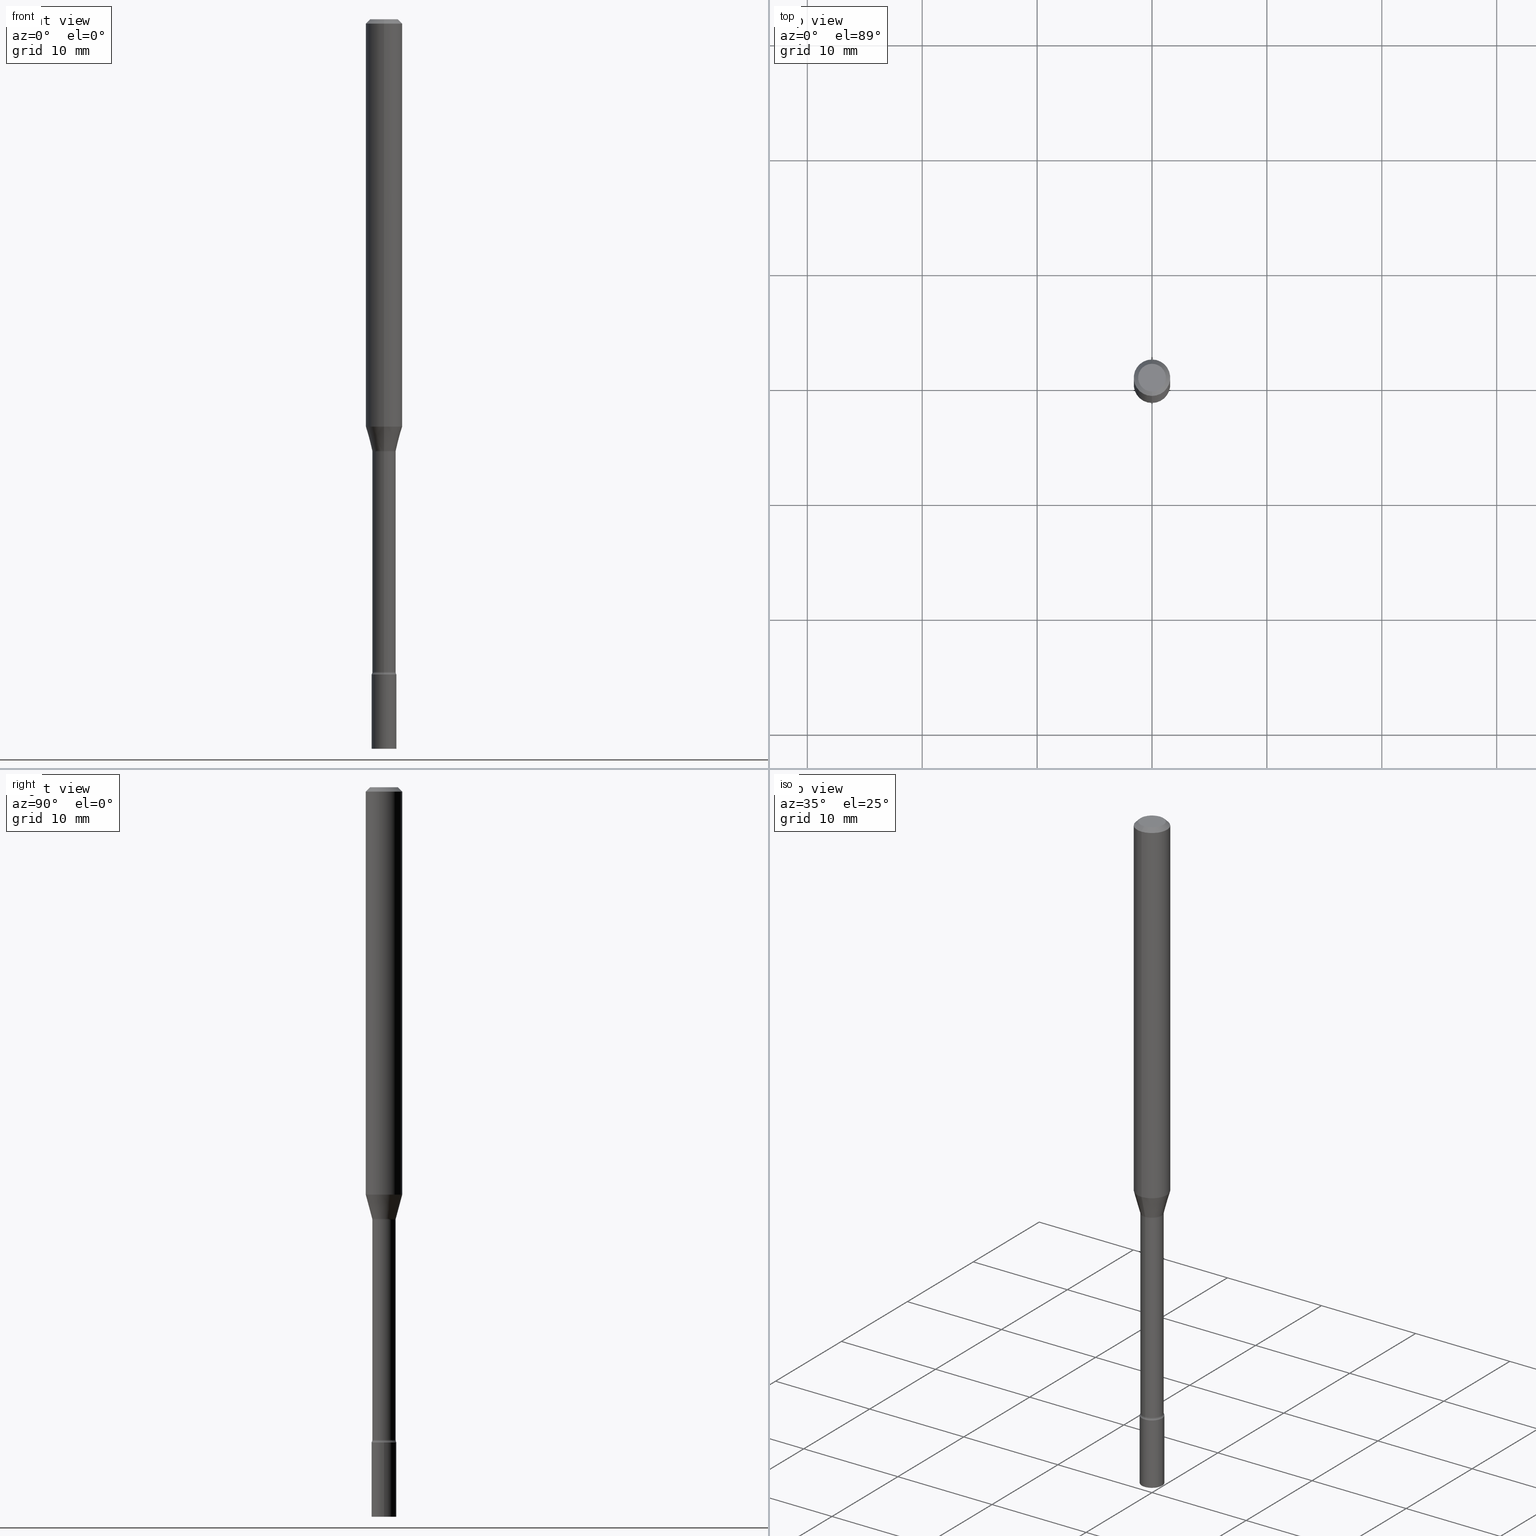
[diagram: canonical four-view strip — front | top / right | iso, engineering-drawing reading convention]
A machine part, canonical four-view strip (front | top / right | iso — engineering-drawing reading convention). The complete STEP part file that produces these views, byte-faithful:
ISO-10303-21;
HEADER;
FILE_DESCRIPTION (( 'STEP AP203' ),
    '1' );
FILE_NAME ('04313.STEP',
    '2024-03-08T23:05:05',
    ( '' ),
    ( '' ),
    'SwSTEP 2.0',
    'SolidWorks 2023',
    '' );
FILE_SCHEMA (( 'CONFIG_CONTROL_DESIGN' ));
ENDSEC;

DATA;
#1 = AXIS2_PLACEMENT_3D ( 'NONE', #19, #295, #327 ) ;
#2 = ADVANCED_FACE ( 'NONE', ( #154 ), #232, .T. ) ;
#3 = ORIENTED_EDGE ( 'NONE', *, *, #272, .F. ) ;
#4 = ADVANCED_FACE ( 'NONE', ( #440 ), #333, .F. ) ;
#5 = DIRECTION ( 'NONE',  ( -6.982962677686265133E-15, -1.000000000000000000, 6.838167693777879394E-15 ) ) ;
#6 = DATE_AND_TIME ( #118, #384 ) ;
#7 = LINE ( 'NONE', #226, #85 ) ;
#8 = TOROIDAL_SURFACE ( 'NONE', #47, 0.05494999999999999885, 0.01500000000000001506 ) ;
#9 = CC_DESIGN_APPROVAL ( #350, ( #300 ) ) ;
#10 = CARTESIAN_POINT ( 'NONE',  ( 2.838618229361602665E-16, 0.03995000000000004103, -1.394862244673067484E-16 ) ) ;
#11 = CARTESIAN_POINT ( 'NONE',  ( -2.789693589735121927E-16, -0.03995000000000789586, -2.236633549139569688 ) ) ;
#12 = EDGE_CURVE ( 'NONE', #479, #267, #355, .T. ) ;
#13 = CARTESIAN_POINT ( 'NONE',  ( -0.04249999999999999611, -7.981558813707320936E-15, -2.245000000000000107 ) ) ;
#14 = MANIFOLD_SOLID_BREP ( 'Body-Move/Copy2[2]', #275 ) ;
#15 = AXIS2_PLACEMENT_3D ( 'NONE', #364, #433, #5 ) ;
#16 = ORIENTED_EDGE ( 'NONE', *, *, #82, .T. ) ;
#17 = AXIS2_PLACEMENT_3D ( 'NONE', #352, #114, #266 ) ;
#18 = EDGE_LOOP ( 'NONE', ( #468, #39, #336, #349 ) ) ;
#19 = CARTESIAN_POINT ( 'NONE',  ( 5.490077469885631570E-29, -7.838375605702861835E-15, -2.245000000000000107 ) ) ;
#20 = EDGE_LOOP ( 'NONE', ( #115, #179 ) ) ;
#21 = APPROVAL ( #71, 'UNSPECIFIED' ) ;
#22 = EDGE_LOOP ( 'NONE', ( #500, #385, #173, #140 ) ) ;
#23 = ORIENTED_EDGE ( 'NONE', *, *, #167, .T. ) ;
#24 = ORIENTED_EDGE ( 'NONE', *, *, #224, .F. ) ;
#25 = PERSON_AND_ORGANIZATION_ROLE ( 'creator' ) ;
#26 = ORIENTED_EDGE ( 'NONE', *, *, #286, .T. ) ;
#27 = ORIENTED_EDGE ( 'NONE', *, *, #212, .T. ) ;
#28 = CARTESIAN_POINT ( 'NONE',  ( -4.287811248607203282E-16, -0.06250000000000005551, -0.01499999999999981209 ) ) ;
#29 = ADVANCED_FACE ( 'NONE', ( #70 ), #263, .T. ) ;
#30 = FACE_OUTER_BOUND ( 'NONE', #260, .T. ) ;
#31 = AXIS2_PLACEMENT_3D ( 'NONE', #168, #174, #95 ) ;
#32 = PERSON_AND_ORGANIZATION ( #323, #175 ) ;
#33 = CARTESIAN_POINT ( 'NONE',  ( 5.469617575287968605E-29, -7.809164298651321670E-15, -2.236633549139569688 ) ) ;
#34 = LINE ( 'NONE', #151, #152 ) ;
#35 = DIRECTION ( 'NONE',  ( 2.438088387897960049E-29, -3.491481338843145188E-15, -1.000000000000000000 ) ) ;
#36 = ORIENTED_EDGE ( 'NONE', *, *, #407, .F. ) ;
#37 = CC_DESIGN_PERSON_AND_ORGANIZATION_ASSIGNMENT ( #314, #368, ( #133 ) ) ;
#38 = SECURITY_CLASSIFICATION_LEVEL ( 'unclassified' ) ;
#39 = ORIENTED_EDGE ( 'NONE', *, *, #286, .F. ) ;
#40 = CARTESIAN_POINT ( 'NONE',  ( 3.668162701613145643E-31, -5.237280017545941852E-17, -0.01500000000000003067 ) ) ;
#41 = PRODUCT_RELATED_PRODUCT_CATEGORY ( 'detail', '', ( #281 ) ) ;
#42 = CIRCLE ( 'NONE', #101, 0.01500000000000000291 ) ;
#43 = FACE_OUTER_BOUND ( 'NONE', #18, .T. ) ;
#44 = ADVANCED_FACE ( 'NONE', ( #30 ), #189, .T. ) ;
#45 = CALENDAR_DATE ( 2024, 8, 3 ) ;
#46 = CARTESIAN_POINT ( 'NONE',  ( -0.04249999999999999611, -7.981558813707320936E-15, -2.500000000000000000 ) ) ;
#47 = AXIS2_PLACEMENT_3D ( 'NONE', #122, #243, #371 ) ;
#48 = DIRECTION ( 'NONE',  ( -6.982962677686265922E-15, -1.000000000000000000, 3.491520011697287074E-15 ) ) ;
#49 = EDGE_CURVE ( 'NONE', #461, #267, #422, .T. ) ;
#50 = CARTESIAN_POINT ( 'NONE',  ( 3.668162701613145643E-31, -5.237280017545941852E-17, -0.01500000000000003067 ) ) ;
#51 = AXIS2_PLACEMENT_3D ( 'NONE', #208, #55, #169 ) ;
#52 = VERTEX_POINT ( 'NONE', #235 ) ;
#53 = DIRECTION ( 'NONE',  ( -2.445441801075425804E-29, 3.491520011697286679E-15, 1.000000000000000000 ) ) ;
#54 = APPROVAL_PERSON_ORGANIZATION ( #265, #21, #223 ) ;
#55 = DIRECTION ( 'NONE',  ( -2.445468806185136597E-29, 3.491481338843145583E-15, 1.000000000000000000 ) ) ;
#56 = EDGE_CURVE ( 'NONE', #329, #62, #403, .T. ) ;
#57 = EDGE_LOOP ( 'NONE', ( #72, #36, #392, #373 ) ) ;
#58 = PLANE ( 'NONE',  #254 ) ;
#59 = ORIENTED_EDGE ( 'NONE', *, *, #431, .T. ) ;
#60 = VERTEX_POINT ( 'NONE', #46 ) ;
#61 = CIRCLE ( 'NONE', #83, 0.04249999999999999611 ) ;
#62 = VERTEX_POINT ( 'NONE', #202 ) ;
#63 =( NAMED_UNIT ( * ) PLANE_ANGLE_UNIT ( ) SI_UNIT ( $, .RADIAN. ) );
#64 = VERTEX_POINT ( 'NONE', #11 ) ;
#65 = DIRECTION ( 'NONE',  ( -2.445441801075425524E-29, 3.491520011697287074E-15, 1.000000000000000000 ) ) ;
#66 = DIRECTION ( 'NONE',  ( -6.982962677686265922E-15, -1.000000000000000000, 3.491520011697286679E-15 ) ) ;
#67 = EDGE_LOOP ( 'NONE', ( #420, #231, #3, #181 ) ) ;
#68 = DIRECTION ( 'NONE',  ( -4.851104656540964275E-15, -0.7071067811865500152, -0.7071067811865450192 ) ) ;
#69 = EDGE_CURVE ( 'NONE', #477, #62, #171, .T. ) ;
#70 = FACE_OUTER_BOUND ( 'NONE', #271, .T. ) ;
#71 = APPROVAL_STATUS ( 'not_yet_approved' ) ;
#72 = ORIENTED_EDGE ( 'NONE', *, *, #341, .F. ) ;
#73 = CIRCLE ( 'NONE', #236, 0.01500000000000001159 ) ;
#74 = PERSON_AND_ORGANIZATION ( #323, #175 ) ;
#75 = LOCAL_TIME ( 18, 5, 5.000000000000000000, #237 ) ;
#76 = VERTEX_POINT ( 'NONE', #256 ) ;
#77 = CC_DESIGN_PERSON_AND_ORGANIZATION_ASSIGNMENT ( #441, #116, ( #300 ) ) ;
#78 = DIRECTION ( 'NONE',  ( -2.445468806185136597E-29, 3.491481338843145583E-15, 1.000000000000000000 ) ) ;
#79 = LINE ( 'NONE', #406, #128 ) ;
#80 = TOROIDAL_SURFACE ( 'NONE', #93, 0.05495000000000008905, 0.01500000000000000291 ) ;
#81 = DIRECTION ( 'NONE',  ( -1.000000000000000000, 6.982962677686265922E-15, -4.883557194083112340E-29 ) ) ;
#82 = EDGE_CURVE ( 'NONE', #376, #76, #310, .T. ) ;
#83 = AXIS2_PLACEMENT_3D ( 'NONE', #488, #123, #520 ) ;
#84 = CARTESIAN_POINT ( 'NONE',  ( 3.904432333002112329E-16, 0.05494999999999482937, -1.481974787463811394 ) ) ;
#85 = VECTOR ( 'NONE', #518, 39.37007874015748143 ) ;
#86 = ADVANCED_FACE ( 'NONE', ( #391 ), #194, .T. ) ;
#87 = DIRECTION ( 'NONE',  ( -6.982962677686265922E-15, -1.000000000000000000, 6.751786635945948968E-15 ) ) ;
#88 = CARTESIAN_POINT ( 'NONE',  ( 3.614589189726750979E-29, -5.160789549129972478E-15, -1.478092501787273250 ) ) ;
#89 = ORIENTED_EDGE ( 'NONE', *, *, #321, .F. ) ;
#90 = DIRECTION ( 'NONE',  ( 1.000000000000000000, -6.982962677686267499E-15, 4.876176775795935793E-29 ) ) ;
#91 = EDGE_CURVE ( 'NONE', #251, #401, #492, .T. ) ;
#92 = AXIS2_PLACEMENT_3D ( 'NONE', #513, #110, #397 ) ;
#93 = AXIS2_PLACEMENT_3D ( 'NONE', #449, #163, #408 ) ;
#94 = ORIENTED_EDGE ( 'NONE', *, *, #398, .T. ) ;
#95 = DIRECTION ( 'NONE',  ( -6.982962677686265133E-15, -1.000000000000000000, 6.838167693777879394E-15 ) ) ;
#96 = CARTESIAN_POINT ( 'NONE',  ( 3.904432333002303135E-16, 0.05494999999999227586, -2.236633549139570132 ) ) ;
#97 = EDGE_LOOP ( 'NONE', ( #107, #247 ) ) ;
#98 = DIRECTION ( 'NONE',  ( 0.000000000000000000, 0.000000000000000000, 1.000000000000000000 ) ) ;
#99 = ORIENTED_EDGE ( 'NONE', *, *, #487, .T. ) ;
#100 = VECTOR ( 'NONE', #409, 39.37007874015748143 ) ;
#101 = AXIS2_PLACEMENT_3D ( 'NONE', #96, #386, #457 ) ;
#102 = EDGE_CURVE ( 'NONE', #64, #255, #185, .T. ) ;
#103 = FACE_OUTER_BOUND ( 'NONE', #20, .T. ) ;
#104 = CARTESIAN_POINT ( 'NONE',  ( 5.490077469885631570E-29, -7.838375605702861835E-15, -2.245000000000000107 ) ) ;
#105 = DIRECTION ( 'NONE',  ( -2.445441801075425524E-29, 3.491520011697287074E-15, 1.000000000000000000 ) ) ;
#106 = DIRECTION ( 'NONE',  ( 1.000000000000000000, -6.982962677686276177E-15, 0.000000000000000000 ) ) ;
#107 = ORIENTED_EDGE ( 'NONE', *, *, #119, .F. ) ;
#108 = DIRECTION ( 'NONE',  ( -2.445441801075425524E-29, 3.491520011697287074E-15, 1.000000000000000000 ) ) ;
#109 = EDGE_CURVE ( 'NONE', #64, #519, #418, .T. ) ;
#110 = DIRECTION ( 'NONE',  ( -2.445441801075425524E-29, 3.491520011697287074E-15, 1.000000000000000000 ) ) ;
#111 = DIRECTION ( 'NONE',  ( -6.982962677686266711E-15, -1.000000000000000000, 0.000000000000000000 ) ) ;
#112 = VECTOR ( 'NONE', #429, 39.37007874015748854 ) ;
#113 = CIRCLE ( 'NONE', #242, 0.01500000000000000291 ) ;
#114 = DIRECTION ( 'NONE',  ( -2.445441801075425524E-29, 3.491520011697287074E-15, 1.000000000000000000 ) ) ;
#115 = ORIENTED_EDGE ( 'NONE', *, *, #82, .F. ) ;
#116 = PERSON_AND_ORGANIZATION_ROLE ( 'design_supplier' ) ;
#117 = DIRECTION ( 'NONE',  ( -2.445441801075425524E-29, 3.491520011697287074E-15, 1.000000000000000000 ) ) ;
#118 = CALENDAR_DATE ( 2024, 8, 3 ) ;
#119 = EDGE_CURVE ( 'NONE', #289, #60, #404, .T. ) ;
#120 = APPROVAL_ROLE ( '' ) ;
#121 = CIRCLE ( 'NONE', #383, 0.06250000000000000000 ) ;
#122 = CARTESIAN_POINT ( 'NONE',  ( 3.624123114295597738E-29, -5.174287315065933391E-15, -1.481974787463811172 ) ) ;
#123 = DIRECTION ( 'NONE',  ( -2.445441801075425524E-29, 3.491520011697287074E-15, 1.000000000000000000 ) ) ;
#124 = CC_DESIGN_PERSON_AND_ORGANIZATION_ASSIGNMENT ( #32, #25, ( #495 ) ) ;
#125 = CARTESIAN_POINT ( 'NONE',  ( 2.929212428171563580E-16, 0.03994999999999226947, -2.236633549139570132 ) ) ;
#126 = FACE_OUTER_BOUND ( 'NONE', #97, .T. ) ;
#127 = DIRECTION ( 'NONE',  ( -2.445441801075425524E-29, 3.491520011697287074E-15, 1.000000000000000000 ) ) ;
#128 = VECTOR ( 'NONE', #322, 39.37007874015748143 ) ;
#129 = CARTESIAN_POINT ( 'NONE',  ( 0.000000000000000000, 0.000000000000000000, 0.000000000000000000 ) ) ;
#130 = ORIENTED_EDGE ( 'NONE', *, *, #398, .F. ) ;
#131 = DIRECTION ( 'NONE',  ( 1.000000000000000000, -6.982962677686265922E-15, 4.876176775795935793E-29 ) ) ;
#132 = AXIS2_PLACEMENT_3D ( 'NONE', #40, #444, #499 ) ;
#133 = SECURITY_CLASSIFICATION ( '', '', #38 ) ;
#134 = DIRECTION ( 'NONE',  ( 6.982962677686265922E-15, 1.000000000000000000, -3.483106191921935554E-15 ) ) ;
#135 = ORIENTED_EDGE ( 'NONE', *, *, #184, .T. ) ;
#136 = LINE ( 'NONE', #28, #269 ) ;
#137 = ADVANCED_FACE ( 'NONE', ( #498 ), #245, .T. ) ;
#138 = EDGE_LOOP ( 'NONE', ( #26, #393 ) ) ;
#139 = APPROVAL_ROLE ( '' ) ;
#140 = ORIENTED_EDGE ( 'NONE', *, *, #370, .F. ) ;
#141 = AXIS2_PLACEMENT_3D ( 'NONE', #494, #282, #435 ) ;
#142 = APPLICATION_PROTOCOL_DEFINITION ( 'international standard', 'config_control_design', 1994, #365 ) ;
#143 = CARTESIAN_POINT ( 'NONE',  ( 6.113672015462842613E-29, -8.728703347107864943E-15, -2.500000000000000000 ) ) ;
#144 = EDGE_LOOP ( 'NONE', ( #215, #507, #305, #16 ) ) ;
#145 = DIRECTION ( 'NONE',  ( 2.445441801075425524E-29, -3.491520011697287074E-15, -1.000000000000000000 ) ) ;
#146 = EDGE_CURVE ( 'NONE', #60, #401, #372, .T. ) ;
#147 = CALENDAR_DATE ( 2024, 8, 3 ) ;
#148 = CARTESIAN_POINT ( 'NONE',  ( 3.413450996346461593E-29, -4.873611164023822212E-15, -1.395842254289322071 ) ) ;
#149 = CARTESIAN_POINT ( 'NONE',  ( 2.838618229362148951E-16, 0.03994999999999483686, -1.481974787463811394 ) ) ;
#150 = ORIENTED_EDGE ( 'NONE', *, *, #389, .F. ) ;
#151 = CARTESIAN_POINT ( 'NONE',  ( -2.825384392229768271E-16, -0.04046111260566916112, -1.478092501787272806 ) ) ;
#152 = VECTOR ( 'NONE', #311, 39.37007874015748143 ) ;
#153 = AXIS2_PLACEMENT_3D ( 'NONE', #233, #306, #377 ) ;
#154 = FACE_OUTER_BOUND ( 'NONE', #67, .T. ) ;
#155 = EDGE_CURVE ( 'NONE', #255, #482, #413, .T. ) ;
#156 = CARTESIAN_POINT ( 'NONE',  ( 7.070279423541340268E-46, -1.009470848364906450E-31, -2.891207396729728353E-17 ) ) ;
#157 = PLANE ( 'NONE',  #453 ) ;
#158 = CIRCLE ( 'NONE', #31, 0.03995000000000000634 ) ;
#159 = DIRECTION ( 'NONE',  ( -2.445441801075425524E-29, 3.491520011697287074E-15, 1.000000000000000000 ) ) ;
#160 = LOCAL_TIME ( 18, 5, 5.000000000000000000, #337 ) ;
#161 = CARTESIAN_POINT ( 'NONE',  ( 0.04249999999999999611, -9.025479260909530016E-15, -2.500000000000000000 ) ) ;
#162 = ADVANCED_FACE ( 'NONE', ( #279 ), #80, .F. ) ;
#163 = DIRECTION ( 'NONE',  ( -2.445441801075425524E-29, 3.491520011697287074E-15, 1.000000000000000000 ) ) ;
#164 = DIMENSIONAL_EXPONENTS ( 1.000000000000000000, 0.000000000000000000, 0.000000000000000000, 0.000000000000000000, 0.000000000000000000, 0.000000000000000000, 0.000000000000000000 ) ;
#165 = CARTESIAN_POINT ( 'NONE',  ( -0.04249999999999999611, 3.019806626980425514E-16, -2.090547413358334859E-30 ) ) ;
#166 = ORIENTED_EDGE ( 'NONE', *, *, #109, .T. ) ;
#167 = EDGE_CURVE ( 'NONE', #76, #376, #61, .T. ) ;
#168 = CARTESIAN_POINT ( 'NONE',  ( 3.624083093403872837E-29, -5.174344627260730538E-15, -1.481974787463811172 ) ) ;
#169 = DIRECTION ( 'NONE',  ( 1.000000000000000000, -6.982962677686254089E-15, 0.000000000000000000 ) ) ;
#170 = ORIENTED_EDGE ( 'NONE', *, *, #467, .T. ) ;
#171 = CIRCLE ( 'NONE', #240, 0.06250000000000000000 ) ;
#172 = AXIS2_PLACEMENT_3D ( 'NONE', #203, #369, #489 ) ;
#173 = ORIENTED_EDGE ( 'NONE', *, *, #197, .T. ) ;
#174 = DIRECTION ( 'NONE',  ( -2.445441801075425524E-29, 3.491520011697287074E-15, 1.000000000000000000 ) ) ;
#175 = ORGANIZATION ( 'UNSPECIFIED', 'UNSPECIFIED', '' ) ;
#176 =( CONVERSION_BASED_UNIT ( 'INCH', #419 ) LENGTH_UNIT ( ) NAMED_UNIT ( #164 ) );
#177 = EDGE_CURVE ( 'NONE', #52, #461, #34, .T. ) ;
#178 = CARTESIAN_POINT ( 'NONE',  ( 3.413450996346461593E-29, -4.873611164023822212E-15, -1.395842254289322071 ) ) ;
#179 = ORIENTED_EDGE ( 'NONE', *, *, #167, .F. ) ;
#180 = CALENDAR_DATE ( 2024, 8, 3 ) ;
#181 = ORIENTED_EDGE ( 'NONE', *, *, #109, .F. ) ;
#182 = PLANE ( 'NONE',  #472 ) ;
#183 = ORIENTED_EDGE ( 'NONE', *, *, #69, .F. ) ;
#184 = EDGE_CURVE ( 'NONE', #289, #251, #7, .T. ) ;
#185 = CIRCLE ( 'NONE', #325, 0.03995000000000008267 ) ;
#186 = FACE_OUTER_BOUND ( 'NONE', #57, .T. ) ;
#187 = CARTESIAN_POINT ( 'NONE',  ( 3.668162701613145643E-31, -5.237280017545941852E-17, -0.01500000000000003067 ) ) ;
#188 = PERSON_AND_ORGANIZATION ( #323, #175 ) ;
#189 = CYLINDRICAL_SURFACE ( 'NONE', #324, 0.04249999999999999611 ) ;
#190 = CARTESIAN_POINT ( 'NONE',  ( 0.04249999999999999611, -8.135151519504528486E-15, -2.245000000000000107 ) ) ;
#191 = ORIENTED_EDGE ( 'NONE', *, *, #177, .F. ) ;
#192 = FACE_OUTER_BOUND ( 'NONE', #207, .T. ) ;
#193 = EDGE_LOOP ( 'NONE', ( #381, #94, #225, #150 ) ) ;
#194 = CONICAL_SURFACE ( 'NONE', #213, 0.06250000000000000000, 0.7853981633974483900 ) ;
#195 =( GEOMETRIC_REPRESENTATION_CONTEXT ( 3 ) GLOBAL_UNCERTAINTY_ASSIGNED_CONTEXT ( ( #252 ) ) GLOBAL_UNIT_ASSIGNED_CONTEXT ( ( #176, #63, #476 ) ) REPRESENTATION_CONTEXT ( 'NONE', 'WORKASPACE' ) );
#196 = COORDINATED_UNIVERSAL_TIME_OFFSET ( 5, 0, .BEHIND. ) ;
#197 = EDGE_CURVE ( 'NONE', #461, #477, #79, .T. ) ;
#198 = CARTESIAN_POINT ( 'NONE',  ( 4.440892098500969316E-16, 0.06249999999999515665, -1.395842254289322293 ) ) ;
#199 = PERSON_AND_ORGANIZATION ( #323, #175 ) ;
#200 = CC_DESIGN_PERSON_AND_ORGANIZATION_ASSIGNMENT ( #259, #351, ( #281 ) ) ;
#201 = AXIS2_PLACEMENT_3D ( 'NONE', #156, #108, #264 ) ;
#202 = CARTESIAN_POINT ( 'NONE',  ( 4.440892098500969316E-16, 0.06249999999999993755, -0.01500000000000024751 ) ) ;
#203 = CARTESIAN_POINT ( 'NONE',  ( 0.000000000000000000, 0.000000000000000000, 0.000000000000000000 ) ) ;
#204 = PLANE ( 'NONE',  #319 ) ;
#205 = CIRCLE ( 'NONE', #201, 0.04749999999999999362 ) ;
#206 = ADVANCED_FACE ( 'NONE', ( #493 ), #462, .T. ) ;
#207 = EDGE_LOOP ( 'NONE', ( #130, #390, #474, #89 ) ) ;
#208 = CARTESIAN_POINT ( 'NONE',  ( 6.113672015462842613E-29, -8.728703347107864943E-15, -2.500000000000000000 ) ) ;
#209 = DIRECTION ( 'NONE',  ( -2.445468806185136597E-29, 3.491481338843145583E-15, 1.000000000000000000 ) ) ;
#210 = ORIENTED_EDGE ( 'NONE', *, *, #119, .T. ) ;
#211 = LINE ( 'NONE', #414, #423 ) ;
#212 = EDGE_CURVE ( 'NONE', #267, #62, #211, .T. ) ;
#213 = AXIS2_PLACEMENT_3D ( 'NONE', #187, #515, #134 ) ;
#214 = CIRCLE ( 'NONE', #405, 0.03995000000000008267 ) ;
#215 = ORIENTED_EDGE ( 'NONE', *, *, #262, .F. ) ;
#216 = CARTESIAN_POINT ( 'NONE',  ( 2.967759138017274423E-16, 0.04249999999999127392, -2.500000000000000000 ) ) ;
#217 = DIRECTION ( 'NONE',  ( 1.000000000000000000, -6.982962677686254089E-15, 0.000000000000000000 ) ) ;
#218 = ORIENTED_EDGE ( 'NONE', *, *, #460, .F. ) ;
#219 = DIRECTION ( 'NONE',  ( -6.982962677686265922E-15, -1.000000000000000000, 6.751786635945948968E-15 ) ) ;
#220 = EDGE_LOOP ( 'NONE', ( #294, #27, #183, #258 ) ) ;
#221 = CARTESIAN_POINT ( 'NONE',  ( 0.000000000000000000, 0.000000000000000000, 0.000000000000000000 ) ) ;
#222 = DIRECTION ( 'NONE',  ( -2.438088387897960049E-29, 3.491481338843145188E-15, 1.000000000000000000 ) ) ;
#223 = APPROVAL_ROLE ( '' ) ;
#224 = EDGE_CURVE ( 'NONE', #482, #519, #158, .T. ) ;
#225 = ORIENTED_EDGE ( 'NONE', *, *, #177, .T. ) ;
#226 = CARTESIAN_POINT ( 'NONE',  ( 0.04249999999999999611, -2.967759138016663549E-16, 2.072375129713272502E-30 ) ) ;
#227 = CIRCLE ( 'NONE', #502, 0.04046111260566399165 ) ;
#228 = AXIS2_PLACEMENT_3D ( 'NONE', #425, #98, #344 ) ;
#229 = PERSON_AND_ORGANIZATION_ROLE ( 'creator' ) ;
#230 = CYLINDRICAL_SURFACE ( 'NONE', #172, 0.06250000000000000000 ) ;
#231 = ORIENTED_EDGE ( 'NONE', *, *, #155, .T. ) ;
#232 = CYLINDRICAL_SURFACE ( 'NONE', #92, 0.03995000000000004103 ) ;
#233 = CARTESIAN_POINT ( 'NONE',  ( 7.070279423541340268E-46, -1.009470848364906450E-31, -2.891207396729728353E-17 ) ) ;
#234 = ADVANCED_FACE ( 'NONE', ( #417 ), #58, .F. ) ;
#235 = CARTESIAN_POINT ( 'NONE',  ( -2.825384392229768271E-16, -0.04046111260566916112, -1.478092501787272806 ) ) ;
#236 = AXIS2_PLACEMENT_3D ( 'NONE', #343, #303, #111 ) ;
#237 = COORDINATED_UNIVERSAL_TIME_OFFSET ( 5, 0, .BEHIND. ) ;
#238 = ADVANCED_FACE ( 'NONE', ( #328 ), #292, .T. ) ;
#239 = APPLICATION_CONTEXT ( 'configuration controlled 3d designs of mechanical parts and assemblies' ) ;
#240 = AXIS2_PLACEMENT_3D ( 'NONE', #50, #387, #298 ) ;
#241 = AXIS2_PLACEMENT_3D ( 'NONE', #221, #432, #316 ) ;
#242 = AXIS2_PLACEMENT_3D ( 'NONE', #354, #81, #317 ) ;
#243 = DIRECTION ( 'NONE',  ( -2.445441801075425524E-29, 3.491520011697287074E-15, 1.000000000000000000 ) ) ;
#244 = DIRECTION ( 'NONE',  ( 7.105427357601001859E-15, 1.000000000000000000, 0.000000000000000000 ) ) ;
#245 = CYLINDRICAL_SURFACE ( 'NONE', #436, 0.06250000000000000000 ) ;
#246 = ADVANCED_FACE ( 'NONE', ( #486 ), #230, .T. ) ;
#247 = ORIENTED_EDGE ( 'NONE', *, *, #431, .F. ) ;
#248 = CC_DESIGN_PERSON_AND_ORGANIZATION_ASSIGNMENT ( #74, #229, ( #300 ) ) ;
#249 = DIRECTION ( 'NONE',  ( -6.982962677686266711E-15, -1.000000000000000000, 6.838167693777865983E-15 ) ) ;
#250 = DIRECTION ( 'NONE',  ( -2.445468806185136597E-29, 3.491481338843145583E-15, 1.000000000000000000 ) ) ;
#251 = VERTEX_POINT ( 'NONE', #190 ) ;
#252 = UNCERTAINTY_MEASURE_WITH_UNIT (LENGTH_MEASURE( 1.000000000000000082E-05 ), #176, 'distance_accuracy_value', 'NONE');
#253 = CARTESIAN_POINT ( 'NONE',  ( 3.657913531386962787E-16, 0.04046111260565882911, -1.478092501787273472 ) ) ;
#254 = AXIS2_PLACEMENT_3D ( 'NONE', #379, #332, #501 ) ;
#255 = VERTEX_POINT ( 'NONE', #125 ) ;
#256 = CARTESIAN_POINT ( 'NONE',  ( 3.019806626980974758E-16, 0.04249999999999216904, -2.245000000000000551 ) ) ;
#257 = DIRECTION ( 'NONE',  ( -2.445441801075425524E-29, 3.491520011697286679E-15, 1.000000000000000000 ) ) ;
#258 = ORIENTED_EDGE ( 'NONE', *, *, #197, .F. ) ;
#259 = PERSON_AND_ORGANIZATION ( #323, #175 ) ;
#260 = EDGE_LOOP ( 'NONE', ( #517, #59, #135, #443 ) ) ;
#261 = CARTESIAN_POINT ( 'NONE',  ( -2.789693589735301393E-16, -0.03995000000000518275, -1.481974787463810728 ) ) ;
#262 = EDGE_CURVE ( 'NONE', #255, #76, #42, .T. ) ;
#263 = CYLINDRICAL_SURFACE ( 'NONE', #241, 0.03995000000000004103 ) ;
#264 = DIRECTION ( 'NONE',  ( -6.982962677686266711E-15, -1.000000000000000000, 3.491520011697287074E-15 ) ) ;
#265 = PERSON_AND_ORGANIZATION ( #323, #175 ) ;
#266 = DIRECTION ( 'NONE',  ( -6.982962677686265922E-15, -1.000000000000000000, 3.491520011697287074E-15 ) ) ;
#267 = VERTEX_POINT ( 'NONE', #198 ) ;
#268 = AXIS2_PLACEMENT_3D ( 'NONE', #88, #159, #442 ) ;
#269 = VECTOR ( 'NONE', #68, 39.37007874015748143 ) ;
#270 = ORIENTED_EDGE ( 'NONE', *, *, #155, .F. ) ;
#271 = EDGE_LOOP ( 'NONE', ( #270, #170, #166, #24 ) ) ;
#272 = EDGE_CURVE ( 'NONE', #519, #482, #446, .T. ) ;
#273 = ORIENTED_EDGE ( 'NONE', *, *, #91, .T. ) ;
#274 = DIRECTION ( 'NONE',  ( -2.445441801075425524E-29, 3.491520011697287074E-15, 1.000000000000000000 ) ) ;
#275 = CLOSED_SHELL ( 'NONE', ( #330, #2, #4, #86, #137, #320, #238, #246, #410, #234, #302, #162, #29, #445 ) ) ;
#276 = CIRCLE ( 'NONE', #345, 0.01500000000000001159 ) ;
#277 = CC_DESIGN_APPROVAL ( #309, ( #133 ) ) ;
#278 = APPROVAL_STATUS ( 'not_yet_approved' ) ;
#279 = FACE_OUTER_BOUND ( 'NONE', #144, .T. ) ;
#280 = CARTESIAN_POINT ( 'NONE',  ( 3.668162701613145643E-31, -5.237280017545941852E-17, -0.01500000000000003067 ) ) ;
#281 = PRODUCT ( '04313', '04313', '', ( #466 ) ) ;
#282 = DIRECTION ( 'NONE',  ( -2.445441801075425524E-29, 3.491520011697287074E-15, 1.000000000000000000 ) ) ;
#283 = VECTOR ( 'NONE', #326, 39.37007874015748143 ) ;
#284 = DIRECTION ( 'NONE',  ( -2.445441801075425804E-29, 3.491520011697286679E-15, 1.000000000000000000 ) ) ;
#285 = DIRECTION ( 'NONE',  ( 1.000000000000000000, -7.105427357601001070E-15, 4.926315982147952603E-29 ) ) ;
#286 = EDGE_CURVE ( 'NONE', #329, #509, #205, .T. ) ;
#287 = CARTESIAN_POINT ( 'NONE',  ( 5.469557174753590330E-29, -7.809250795654335165E-15, -2.236633549139569688 ) ) ;
#288 = EDGE_LOOP ( 'NONE', ( #218, #99, #378, #338 ) ) ;
#289 = VERTEX_POINT ( 'NONE', #161 ) ;
#290 = DIRECTION ( 'NONE',  ( -2.445441801075425524E-29, 3.491520011697287074E-15, 1.000000000000000000 ) ) ;
#291 = ADVANCED_FACE ( 'NONE', ( #451 ), #204, .T. ) ;
#292 = CONICAL_SURFACE ( 'NONE', #141, 0.04046111260566399165, 0.2617993877991499074 ) ;
#293 = APPROVAL_PERSON_ORGANIZATION ( #188, #350, #139 ) ;
#294 = ORIENTED_EDGE ( 'NONE', *, *, #49, .T. ) ;
#295 = DIRECTION ( 'NONE',  ( -2.445468806185136597E-29, 3.491481338843145583E-15, 1.000000000000000000 ) ) ;
#296 = ORIENTED_EDGE ( 'NONE', *, *, #262, .T. ) ;
#297 = CARTESIAN_POINT ( 'NONE',  ( -3.773273898774340269E-16, -0.04749999999999999362, 1.369351265883238818E-16 ) ) ;
#298 = DIRECTION ( 'NONE',  ( -6.982962677686265922E-15, -1.000000000000000000, 3.483106191921935554E-15 ) ) ;
#299 = CARTESIAN_POINT ( 'NONE',  ( 2.967759138017211808E-16, 0.04249999999999216210, -2.245000000000000551 ) ) ;
#300 = PRODUCT_DEFINITION_FORMATION_WITH_SPECIFIED_SOURCE ( 'ANY', '', #281, .NOT_KNOWN. ) ;
#301 = ORIENTED_EDGE ( 'NONE', *, *, #146, .T. ) ;
#302 = ADVANCED_FACE ( 'NONE', ( #103 ), #182, .F. ) ;
#303 = DIRECTION ( 'NONE',  ( -1.000000000000000000, 6.982962677686265922E-15, -4.883557194083112340E-29 ) ) ;
#304 = CARTESIAN_POINT ( 'NONE',  ( -4.364351673553912750E-16, -0.06250000000000005551, -0.01499999999999981209 ) ) ;
#305 = ORIENTED_EDGE ( 'NONE', *, *, #421, .T. ) ;
#306 = DIRECTION ( 'NONE',  ( -2.445441801075425524E-29, 3.491520011697287074E-15, 1.000000000000000000 ) ) ;
#307 = DATE_AND_TIME ( #180, #313 ) ;
#308 = CARTESIAN_POINT ( 'NONE',  ( 0.000000000000000000, 0.000000000000000000, 0.000000000000000000 ) ) ;
#309 = APPROVAL ( #278, 'UNSPECIFIED' ) ;
#310 = CIRCLE ( 'NONE', #471, 0.04249999999999999611 ) ;
#311 = DIRECTION ( 'NONE',  ( -1.807323732225327773E-15, -0.2588190451025178529, 0.9659258262890690894 ) ) ;
#312 = CIRCLE ( 'NONE', #367, 0.04249999999999999611 ) ;
#313 = LOCAL_TIME ( 18, 5, 5.000000000000000000, #469 ) ;
#314 = PERSON_AND_ORGANIZATION ( #323, #175 ) ;
#315 = CARTESIAN_POINT ( 'NONE',  ( 3.614589189726750979E-29, -5.160789549129972478E-15, -1.478092501787273250 ) ) ;
#316 = DIRECTION ( 'NONE',  ( -6.982962677686265133E-15, -1.000000000000000000, 3.491520011697286679E-15 ) ) ;
#317 = DIRECTION ( 'NONE',  ( -6.982962677686266711E-15, -1.000000000000000000, 0.000000000000000000 ) ) ;
#318 = CLOSED_SHELL ( 'NONE', ( #206, #291, #44, #363 ) ) ;
#319 = AXIS2_PLACEMENT_3D ( 'NONE', #456, #222, #131 ) ;
#320 = ADVANCED_FACE ( 'NONE', ( #339 ), #366, .T. ) ;
#321 = EDGE_CURVE ( 'NONE', #52, #519, #73, .T. ) ;
#322 = DIRECTION ( 'NONE',  ( -2.445441801075425804E-29, 3.491520011697286679E-15, 1.000000000000000000 ) ) ;
#323 = PERSON ( 'UNSPECIFIED', 'UNSPECIFIED', 'UNSPECIFIED', ('UNSPECIFIED'), ('UNSPECIFIED'), ('UNSPECIFIED') ) ;
#324 = AXIS2_PLACEMENT_3D ( 'NONE', #308, #78, #484 ) ;
#325 = AXIS2_PLACEMENT_3D ( 'NONE', #287, #496, #459 ) ;
#326 = DIRECTION ( 'NONE',  ( -2.445468806185136877E-29, 3.491481338843145188E-15, 1.000000000000000000 ) ) ;
#327 = DIRECTION ( 'NONE',  ( 1.000000000000000000, -6.982962677686276177E-15, 0.000000000000000000 ) ) ;
#328 = FACE_OUTER_BOUND ( 'NONE', #193, .T. ) ;
#329 = VERTEX_POINT ( 'NONE', #438 ) ;
#330 = ADVANCED_FACE ( 'NONE', ( #192 ), #8, .F. ) ;
#331 = EDGE_LOOP ( 'NONE', ( #424, #296, #23, #353 ) ) ;
#332 = DIRECTION ( 'NONE',  ( 2.445441801075425524E-29, -3.491520011697286679E-15, -1.000000000000000000 ) ) ;
#333 = TOROIDAL_SURFACE ( 'NONE', #480, 0.05495000000000008905, 0.01500000000000000291 ) ;
#334 = DIRECTION ( 'NONE',  ( -2.445441801075425524E-29, 3.491520011697287074E-15, 1.000000000000000000 ) ) ;
#335 = CC_DESIGN_SECURITY_CLASSIFICATION ( #133, ( #300 ) ) ;
#336 = ORIENTED_EDGE ( 'NONE', *, *, #56, .T. ) ;
#337 = COORDINATED_UNIVERSAL_TIME_OFFSET ( 5, 0, .BEHIND. ) ;
#338 = ORIENTED_EDGE ( 'NONE', *, *, #56, .F. ) ;
#339 = FACE_OUTER_BOUND ( 'NONE', #497, .T. ) ;
#340 = DATE_TIME_ROLE ( 'creation_date' ) ;
#341 = EDGE_CURVE ( 'NONE', #479, #482, #276, .T. ) ;
#342 = ORIENTED_EDGE ( 'NONE', *, *, #514, .T. ) ;
#343 = CARTESIAN_POINT ( 'NONE',  ( -3.837137991388241005E-16, -0.05495000000000517526, -1.481974787463810728 ) ) ;
#344 = DIRECTION ( 'NONE',  ( 1.000000000000000000, 0.000000000000000000, 0.000000000000000000 ) ) ;
#345 = AXIS2_PLACEMENT_3D ( 'NONE', #84, #285, #244 ) ;
#346 = CARTESIAN_POINT ( 'NONE',  ( 2.874934964272957737E-16, 0.04046111260565882911, -1.478092501787273472 ) ) ;
#347 = DIRECTION ( 'NONE',  ( -1.000000000000000000, 6.982962677686265922E-15, -4.876176775795935793E-29 ) ) ;
#348 = CALENDAR_DATE ( 2024, 8, 3 ) ;
#349 = ORIENTED_EDGE ( 'NONE', *, *, #370, .T. ) ;
#350 = APPROVAL ( #508, 'UNSPECIFIED' ) ;
#351 = PERSON_AND_ORGANIZATION_ROLE ( 'design_owner' ) ;
#352 = CARTESIAN_POINT ( 'NONE',  ( 3.624123114295597738E-29, -5.174287315065933391E-15, -1.481974787463811172 ) ) ;
#353 = ORIENTED_EDGE ( 'NONE', *, *, #421, .F. ) ;
#354 = CARTESIAN_POINT ( 'NONE',  ( -3.837137991388062032E-16, -0.05495000000000789531, -2.236633549139569688 ) ) ;
#355 = LINE ( 'NONE', #346, #112 ) ;
#356 = AXIS2_PLACEMENT_3D ( 'NONE', #129, #209, #90 ) ;
#357 = APPROVAL_PERSON_ORGANIZATION ( #199, #309, #120 ) ;
#358 = DATE_AND_TIME ( #45, #75 ) ;
#359 = CARTESIAN_POINT ( 'NONE',  ( 4.364351673553919652E-16, 0.06249999999999995143, -0.01500000000000024751 ) ) ;
#360 = DIRECTION ( 'NONE',  ( 6.982962677686265922E-15, 1.000000000000000000, -3.483106191921935554E-15 ) ) ;
#361 = PRODUCT_DEFINITION_SHAPE ( 'NONE', 'NONE',  #495 ) ;
#362 = MANIFOLD_SOLID_BREP ( 'Body-Move/Copy2[1]', #318 ) ;
#363 = ADVANCED_FACE ( 'NONE', ( #126 ), #157, .T. ) ;
#364 = CARTESIAN_POINT ( 'NONE',  ( 3.624083093403872837E-29, -5.174344627260730538E-15, -1.481974787463811172 ) ) ;
#365 = APPLICATION_CONTEXT ( 'configuration controlled 3d designs of mechanical parts and assemblies' ) ;
#366 = CONICAL_SURFACE ( 'NONE', #374, 0.04046111260566399165, 0.2617993877991499074 ) ;
#367 = AXIS2_PLACEMENT_3D ( 'NONE', #143, #250, #217 ) ;
#368 = PERSON_AND_ORGANIZATION_ROLE ( 'classification_officer' ) ;
#369 = DIRECTION ( 'NONE',  ( -2.445441801075425524E-29, 3.491520011697287074E-15, 1.000000000000000000 ) ) ;
#370 = EDGE_CURVE ( 'NONE', #62, #477, #463, .T. ) ;
#371 = DIRECTION ( 'NONE',  ( -6.982962677686265922E-15, -1.000000000000000000, 3.491520011697287074E-15 ) ) ;
#372 = LINE ( 'NONE', #165, #283 ) ;
#373 = ORIENTED_EDGE ( 'NONE', *, *, #272, .T. ) ;
#374 = AXIS2_PLACEMENT_3D ( 'NONE', #511, #427, #219 ) ;
#375 = AXIS2_PLACEMENT_3D ( 'NONE', #104, #473, #106 ) ;
#376 = VERTEX_POINT ( 'NONE', #380 ) ;
#377 = DIRECTION ( 'NONE',  ( -6.982962677686266711E-15, -1.000000000000000000, 3.491520011697287074E-15 ) ) ;
#378 = ORIENTED_EDGE ( 'NONE', *, *, #69, .T. ) ;
#379 = CARTESIAN_POINT ( 'NONE',  ( 3.316907271900976096E-16, 0.04749999999999999362, -1.803032375392697670E-16 ) ) ;
#380 = CARTESIAN_POINT ( 'NONE',  ( -2.967759138016113812E-16, -0.04250000000000784400, -2.245000000000000107 ) ) ;
#381 = ORIENTED_EDGE ( 'NONE', *, *, #12, .F. ) ;
#382 = CARTESIAN_POINT ( 'NONE',  ( -2.789693589735665748E-16, -0.03995000000000004103, 1.394862244673067484E-16 ) ) ;
#383 = AXIS2_PLACEMENT_3D ( 'NONE', #178, #290, #503 ) ;
#384 = LOCAL_TIME ( 18, 5, 5.000000000000000000, #196 ) ;
#385 = ORIENTED_EDGE ( 'NONE', *, *, #389, .T. ) ;
#386 = DIRECTION ( 'NONE',  ( 1.000000000000000000, -7.105427357601001070E-15, 4.926315982147952603E-29 ) ) ;
#387 = DIRECTION ( 'NONE',  ( -2.445441801075425524E-29, 3.491520011697287074E-15, 1.000000000000000000 ) ) ;
#388 = APPROVAL_DATE_TIME ( #394, #21 ) ;
#389 = EDGE_CURVE ( 'NONE', #267, #461, #121, .T. ) ;
#390 = ORIENTED_EDGE ( 'NONE', *, *, #341, .T. ) ;
#391 = FACE_OUTER_BOUND ( 'NONE', #288, .T. ) ;
#392 = ORIENTED_EDGE ( 'NONE', *, *, #321, .T. ) ;
#393 = ORIENTED_EDGE ( 'NONE', *, *, #460, .T. ) ;
#394 = DATE_AND_TIME ( #348, #160 ) ;
#395 = VECTOR ( 'NONE', #284, 39.37007874015748143 ) ;
#396 = CIRCLE ( 'NONE', #375, 0.04249999999999999611 ) ;
#397 = DIRECTION ( 'NONE',  ( -6.982962677686265133E-15, -1.000000000000000000, 3.491520011697286679E-15 ) ) ;
#398 = EDGE_CURVE ( 'NONE', #479, #52, #227, .T. ) ;
#399 =( LENGTH_UNIT ( ) NAMED_UNIT ( * ) SI_UNIT ( $, .METRE. ) );
#400 = DIRECTION ( 'NONE',  ( -6.982962677686265922E-15, -1.000000000000000000, 3.491520011697287074E-15 ) ) ;
#401 = VERTEX_POINT ( 'NONE', #13 ) ;
#402 = DATE_TIME_ROLE ( 'classification_date' ) ;
#403 = LINE ( 'NONE', #359, #100 ) ;
#404 = CIRCLE ( 'NONE', #51, 0.04249999999999999611 ) ;
#405 = AXIS2_PLACEMENT_3D ( 'NONE', #510, #274, #249 ) ;
#406 = CARTESIAN_POINT ( 'NONE',  ( -4.364351673553916201E-16, -0.06250000000000000000, 2.182200007310804421E-16 ) ) ;
#407 = EDGE_CURVE ( 'NONE', #52, #479, #415, .T. ) ;
#408 = DIRECTION ( 'NONE',  ( -6.982962677686265922E-15, -1.000000000000000000, 3.491520011697287074E-15 ) ) ;
#409 = DIRECTION ( 'NONE',  ( 4.937700262164548042E-15, 0.7071067811865451302, -0.7071067811865499042 ) ) ;
#410 = ADVANCED_FACE ( 'NONE', ( #43 ), #411, .T. ) ;
#411 = CONICAL_SURFACE ( 'NONE', #481, 0.06250000000000000000, 0.7853981633974483900 ) ;
#412 = CARTESIAN_POINT ( 'NONE',  ( 0.000000000000000000, 0.000000000000000000, 0.000000000000000000 ) ) ;
#413 = LINE ( 'NONE', #10, #485 ) ;
#414 = CARTESIAN_POINT ( 'NONE',  ( 4.440892098500625669E-16, 0.06250000000000000000, -2.182200007310804421E-16 ) ) ;
#415 = CIRCLE ( 'NONE', #268, 0.04046111260566399165 ) ;
#416 = ORIENTED_EDGE ( 'NONE', *, *, #91, .F. ) ;
#417 = FACE_OUTER_BOUND ( 'NONE', #138, .T. ) ;
#418 = LINE ( 'NONE', #382, #395 ) ;
#419 = LENGTH_MEASURE_WITH_UNIT ( LENGTH_MEASURE( 0.02539999999999999897 ), #399 );
#420 = ORIENTED_EDGE ( 'NONE', *, *, #102, .T. ) ;
#421 = EDGE_CURVE ( 'NONE', #64, #376, #113, .T. ) ;
#422 = CIRCLE ( 'NONE', #491, 0.06250000000000000000 ) ;
#423 = VECTOR ( 'NONE', #53, 39.37007874015748143 ) ;
#424 = ORIENTED_EDGE ( 'NONE', *, *, #467, .F. ) ;
#425 = CARTESIAN_POINT ( 'NONE',  ( 0.000000000000000000, 0.000000000000000000, 0.000000000000000000 ) ) ;
#426 = CARTESIAN_POINT ( 'NONE',  ( 5.490016843414331450E-29, -7.838462426260409936E-15, -2.245000000000000107 ) ) ;
#427 = DIRECTION ( 'NONE',  ( -2.445441801075425524E-29, 3.491520011697287074E-15, 1.000000000000000000 ) ) ;
#428 = ORIENTED_EDGE ( 'NONE', *, *, #184, .F. ) ;
#429 = DIRECTION ( 'NONE',  ( 1.839019923739597554E-15, 0.2588190451025245697, 0.9659258262890670910 ) ) ;
#430 = APPLICATION_PROTOCOL_DEFINITION ( 'international standard', 'config_control_design', 1994, #239 ) ;
#431 = EDGE_CURVE ( 'NONE', #60, #289, #312, .T. ) ;
#432 = DIRECTION ( 'NONE',  ( -2.445441801075425524E-29, 3.491520011697287074E-15, 1.000000000000000000 ) ) ;
#433 = DIRECTION ( 'NONE',  ( -2.445441801075425524E-29, 3.491520011697287074E-15, 1.000000000000000000 ) ) ;
#434 = DATE_AND_TIME ( #147, #464 ) ;
#435 = DIRECTION ( 'NONE',  ( -6.982962677686265922E-15, -1.000000000000000000, 6.751786635945948968E-15 ) ) ;
#436 = AXIS2_PLACEMENT_3D ( 'NONE', #412, #127, #48 ) ;
#437 = ORIENTED_EDGE ( 'NONE', *, *, #407, .T. ) ;
#438 = CARTESIAN_POINT ( 'NONE',  ( 3.840629472727447874E-16, 0.04749999999999999362, -1.947592745229183872E-16 ) ) ;
#439 = APPROVAL_DATE_TIME ( #358, #309 ) ;
#440 = FACE_OUTER_BOUND ( 'NONE', #331, .T. ) ;
#441 = PERSON_AND_ORGANIZATION ( #323, #175 ) ;
#442 = DIRECTION ( 'NONE',  ( -6.982962677686265922E-15, -1.000000000000000000, 6.751786635945948968E-15 ) ) ;
#443 = ORIENTED_EDGE ( 'NONE', *, *, #514, .F. ) ;
#444 = DIRECTION ( 'NONE',  ( -2.445441801075425524E-29, 3.491520011697287074E-15, 1.000000000000000000 ) ) ;
#445 = ADVANCED_FACE ( 'NONE', ( #186 ), #504, .F. ) ;
#446 = CIRCLE ( 'NONE', #15, 0.03995000000000000634 ) ;
#447 = CIRCLE ( 'NONE', #153, 0.04749999999999999362 ) ;
#448 = SHAPE_DEFINITION_REPRESENTATION ( #361, #454 ) ;
#449 = CARTESIAN_POINT ( 'NONE',  ( 5.469617575287968605E-29, -7.809164298651321670E-15, -2.236633549139569688 ) ) ;
#450 = CC_DESIGN_DATE_AND_TIME_ASSIGNMENT ( #307, #340, ( #495 ) ) ;
#451 = FACE_OUTER_BOUND ( 'NONE', #465, .T. ) ;
#452 = DESIGN_CONTEXT ( 'detailed design', #239, 'design' ) ;
#453 = AXIS2_PLACEMENT_3D ( 'NONE', #216, #35, #347 ) ;
#454 = ADVANCED_BREP_SHAPE_REPRESENTATION ( '04313', ( #362, #14, #228 ), #195 ) ;
#455 = CARTESIAN_POINT ( 'NONE',  ( -4.364351673553572060E-16, -0.06250000000000484335, -1.395842254289321849 ) ) ;
#456 = CARTESIAN_POINT ( 'NONE',  ( 5.490077469885631570E-29, -7.838375605702861835E-15, -2.245000000000000107 ) ) ;
#457 = DIRECTION ( 'NONE',  ( 7.105427357601001859E-15, 1.000000000000000000, 0.000000000000000000 ) ) ;
#458 = ORIENTED_EDGE ( 'NONE', *, *, #49, .F. ) ;
#459 = DIRECTION ( 'NONE',  ( -6.982962677686266711E-15, -1.000000000000000000, 6.838167693777865983E-15 ) ) ;
#460 = EDGE_CURVE ( 'NONE', #509, #329, #447, .T. ) ;
#461 = VERTEX_POINT ( 'NONE', #455 ) ;
#462 = CYLINDRICAL_SURFACE ( 'NONE', #356, 0.04249999999999999611 ) ;
#463 = CIRCLE ( 'NONE', #132, 0.06250000000000000000 ) ;
#464 = LOCAL_TIME ( 18, 5, 5.000000000000000000, #516 ) ;
#465 = EDGE_LOOP ( 'NONE', ( #273, #342 ) ) ;
#466 = MECHANICAL_CONTEXT ( 'NONE', #365, 'mechanical' ) ;
#467 = EDGE_CURVE ( 'NONE', #255, #64, #214, .T. ) ;
#468 = ORIENTED_EDGE ( 'NONE', *, *, #487, .F. ) ;
#469 = COORDINATED_UNIVERSAL_TIME_OFFSET ( 5, 0, .BEHIND. ) ;
#470 = ORIENTED_EDGE ( 'NONE', *, *, #12, .T. ) ;
#471 = AXIS2_PLACEMENT_3D ( 'NONE', #426, #65, #475 ) ;
#472 = AXIS2_PLACEMENT_3D ( 'NONE', #299, #257, #66 ) ;
#473 = DIRECTION ( 'NONE',  ( -2.445468806185136597E-29, 3.491481338843145583E-15, 1.000000000000000000 ) ) ;
#474 = ORIENTED_EDGE ( 'NONE', *, *, #224, .T. ) ;
#475 = DIRECTION ( 'NONE',  ( -6.982962677686266711E-15, -1.000000000000000000, 6.427877632151208176E-15 ) ) ;
#476 =( NAMED_UNIT ( * ) SI_UNIT ( $, .STERADIAN. ) SOLID_ANGLE_UNIT ( ) );
#477 = VERTEX_POINT ( 'NONE', #304 ) ;
#478 = APPROVAL_DATE_TIME ( #434, #350 ) ;
#479 = VERTEX_POINT ( 'NONE', #253 ) ;
#480 = AXIS2_PLACEMENT_3D ( 'NONE', #33, #105, #400 ) ;
#481 = AXIS2_PLACEMENT_3D ( 'NONE', #280, #145, #360 ) ;
#482 = VERTEX_POINT ( 'NONE', #149 ) ;
#483 = DIRECTION ( 'NONE',  ( -2.445441801075425804E-29, 3.491520011697286679E-15, 1.000000000000000000 ) ) ;
#484 = DIRECTION ( 'NONE',  ( 1.000000000000000000, -6.982962677686267499E-15, 4.876176775795935793E-29 ) ) ;
#485 = VECTOR ( 'NONE', #483, 39.37007874015748143 ) ;
#486 = FACE_OUTER_BOUND ( 'NONE', #22, .T. ) ;
#487 = EDGE_CURVE ( 'NONE', #509, #477, #136, .T. ) ;
#488 = CARTESIAN_POINT ( 'NONE',  ( 5.490016843414331450E-29, -7.838462426260409936E-15, -2.245000000000000107 ) ) ;
#489 = DIRECTION ( 'NONE',  ( -6.982962677686265922E-15, -1.000000000000000000, 3.491520011697287074E-15 ) ) ;
#490 = DIRECTION ( 'NONE',  ( -6.982962677686265922E-15, -1.000000000000000000, 4.370956789862821150E-15 ) ) ;
#491 = AXIS2_PLACEMENT_3D ( 'NONE', #148, #117, #490 ) ;
#492 = CIRCLE ( 'NONE', #1, 0.04249999999999999611 ) ;
#493 = FACE_OUTER_BOUND ( 'NONE', #506, .T. ) ;
#494 = CARTESIAN_POINT ( 'NONE',  ( 3.614589189726750979E-29, -5.160789549129972478E-15, -1.478092501787273250 ) ) ;
#495 = PRODUCT_DEFINITION ( 'UNKNOWN', '', #300, #452 ) ;
#496 = DIRECTION ( 'NONE',  ( -2.445441801075425524E-29, 3.491520011697287074E-15, 1.000000000000000000 ) ) ;
#497 = EDGE_LOOP ( 'NONE', ( #437, #470, #458, #191 ) ) ;
#498 = FACE_OUTER_BOUND ( 'NONE', #220, .T. ) ;
#499 = DIRECTION ( 'NONE',  ( -6.982962677686265922E-15, -1.000000000000000000, 3.483106191921935554E-15 ) ) ;
#500 = ORIENTED_EDGE ( 'NONE', *, *, #212, .F. ) ;
#501 = DIRECTION ( 'NONE',  ( 6.982962677686265922E-15, 1.000000000000000000, -3.491520011697286679E-15 ) ) ;
#502 = AXIS2_PLACEMENT_3D ( 'NONE', #315, #334, #87 ) ;
#503 = DIRECTION ( 'NONE',  ( -6.982962677686265922E-15, -1.000000000000000000, 4.370956789862821150E-15 ) ) ;
#504 = TOROIDAL_SURFACE ( 'NONE', #17, 0.05494999999999999885, 0.01500000000000001506 ) ;
#505 = CC_DESIGN_DATE_AND_TIME_ASSIGNMENT ( #6, #402, ( #133 ) ) ;
#506 = EDGE_LOOP ( 'NONE', ( #210, #301, #416, #428 ) ) ;
#507 = ORIENTED_EDGE ( 'NONE', *, *, #102, .F. ) ;
#508 = APPROVAL_STATUS ( 'not_yet_approved' ) ;
#509 = VERTEX_POINT ( 'NONE', #297 ) ;
#510 = CARTESIAN_POINT ( 'NONE',  ( 5.469557174753590330E-29, -7.809250795654335165E-15, -2.236633549139569688 ) ) ;
#511 = CARTESIAN_POINT ( 'NONE',  ( 3.614589189726750979E-29, -5.160789549129972478E-15, -1.478092501787273250 ) ) ;
#512 = CC_DESIGN_APPROVAL ( #21, ( #495 ) ) ;
#513 = CARTESIAN_POINT ( 'NONE',  ( 0.000000000000000000, 0.000000000000000000, 0.000000000000000000 ) ) ;
#514 = EDGE_CURVE ( 'NONE', #401, #251, #396, .T. ) ;
#515 = DIRECTION ( 'NONE',  ( 2.445441801075425524E-29, -3.491520011697287074E-15, -1.000000000000000000 ) ) ;
#516 = COORDINATED_UNIVERSAL_TIME_OFFSET ( 5, 0, .BEHIND. ) ;
#517 = ORIENTED_EDGE ( 'NONE', *, *, #146, .F. ) ;
#518 = DIRECTION ( 'NONE',  ( -2.445468806185136877E-29, 3.491481338843145188E-15, 1.000000000000000000 ) ) ;
#519 = VERTEX_POINT ( 'NONE', #261 ) ;
#520 = DIRECTION ( 'NONE',  ( -6.982962677686266711E-15, -1.000000000000000000, 6.427877632151208176E-15 ) ) ;
ENDSEC;
END-ISO-10303-21;
